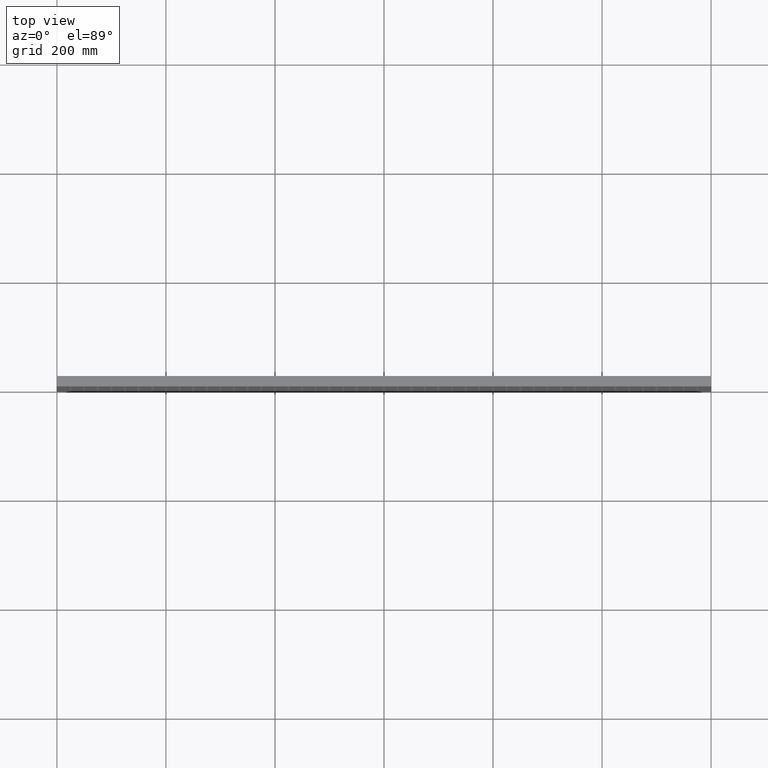
[diagram: clean part render]
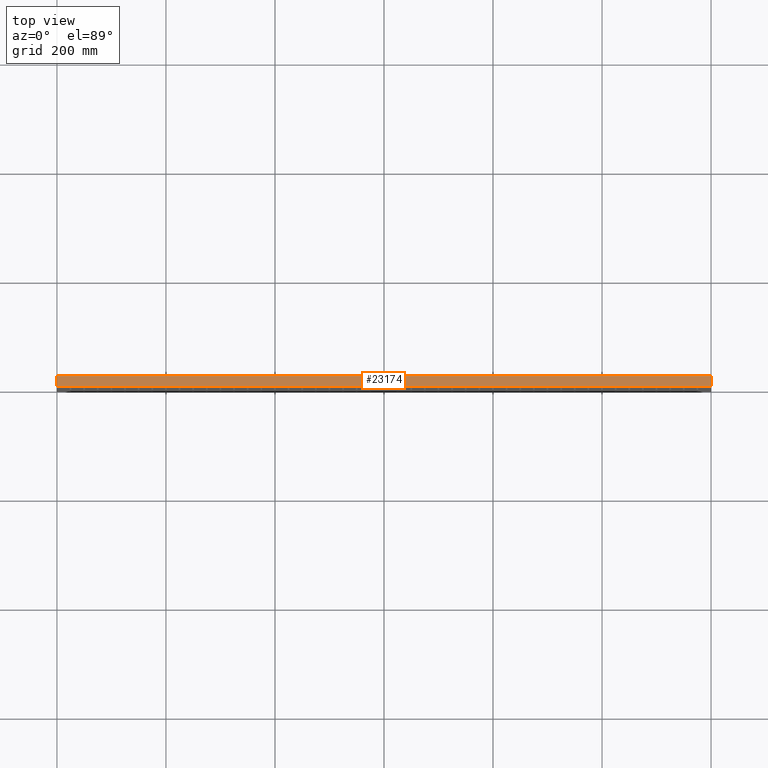
[diagram: same view with one face highlighted and labeled with its STEP entity id]
A machine part, top view. The second image highlights one B-rep face of the part: STEP entity #23174.
In plain terms, the highlighted planar face has unit normal (0, 0, -1).
Its self-contained STEP definition (entity closure, byte-faithful):
#1702 = EDGE_LOOP ( 'NONE', ( #26204, #36051, #7016, #2365 ) ) ;
#2365 = ORIENTED_EDGE ( 'NONE', *, *, #29900, .T. ) ;
#2554 = CARTESIAN_POINT ( 'NONE',  ( 600.0000000000000000, 19.00000000000000000, 300.0000000000001705 ) ) ;
#4177 = LINE ( 'NONE', #7031, #12575 ) ;
#4248 = EDGE_CURVE ( 'NONE', #26893, #29099, #5547, .T. ) ;
#4952 = AXIS2_PLACEMENT_3D ( 'NONE', #17007, #31287, #5078 ) ;
#5078 = DIRECTION ( 'NONE',  ( -1.000000000000000000, 0.000000000000000000, -0.000000000000000000 ) ) ;
#5520 = DIRECTION ( 'NONE',  ( 0.000000000000000000, 1.000000000000000000, 0.000000000000000000 ) ) ;
#5547 = LINE ( 'NONE', #28920, #20569 ) ;
#6713 = VERTEX_POINT ( 'NONE', #2554 ) ;
#7016 = ORIENTED_EDGE ( 'NONE', *, *, #4248, .F. ) ;
#7031 = CARTESIAN_POINT ( 'NONE',  ( 0.000000000000000000, 19.00000000000000000, 300.0000000000001705 ) ) ;
#7777 = CARTESIAN_POINT ( 'NONE',  ( -599.9999999999998863, 0.000000000000000000, 300.0000000000001705 ) ) ;
#7921 = LINE ( 'NONE', #19876, #27630 ) ;
#11223 = LINE ( 'NONE', #14452, #17717 ) ;
#11346 = DIRECTION ( 'NONE',  ( 1.000000000000000000, -0.000000000000000000, 0.000000000000000000 ) ) ;
#12575 = VECTOR ( 'NONE', #23745, 1000.000000000000000 ) ;
#14452 = CARTESIAN_POINT ( 'NONE',  ( 600.0000000000000000, 19.00000000000000000, 300.0000000000001705 ) ) ;
#15026 = CARTESIAN_POINT ( 'NONE',  ( -599.9999999999998863, 19.00000000000000000, 300.0000000000001705 ) ) ;
#17007 = CARTESIAN_POINT ( 'NONE',  ( -599.9999999999998863, 19.00000000000000000, 300.0000000000001705 ) ) ;
#17123 = DIRECTION ( 'NONE',  ( 0.000000000000000000, 1.000000000000000000, 0.000000000000000000 ) ) ;
#17697 = VERTEX_POINT ( 'NONE', #22260 ) ;
#17717 = VECTOR ( 'NONE', #5520, 1000.000000000000000 ) ;
#19494 = PLANE ( 'NONE',  #4952 ) ;
#19876 = CARTESIAN_POINT ( 'NONE',  ( -599.9999999999998863, 0.000000000000000000, 300.0000000000001705 ) ) ;
#20569 = VECTOR ( 'NONE', #17123, 1000.000000000000000 ) ;
#22260 = CARTESIAN_POINT ( 'NONE',  ( 599.9999999999998863, 0.000000000000000000, 300.0000000000001705 ) ) ;
#22733 = FACE_OUTER_BOUND ( 'NONE', #1702, .T. ) ;
#23174 = ADVANCED_FACE ( 'NONE', ( #22733 ), #19494, .F. ) ;
#23412 = EDGE_CURVE ( 'NONE', #17697, #6713, #11223, .T. ) ;
#23745 = DIRECTION ( 'NONE',  ( 1.000000000000000000, 0.000000000000000000, -0.000000000000000000 ) ) ;
#26204 = ORIENTED_EDGE ( 'NONE', *, *, #23412, .T. ) ;
#26893 = VERTEX_POINT ( 'NONE', #7777 ) ;
#27630 = VECTOR ( 'NONE', #11346, 1000.000000000000000 ) ;
#28920 = CARTESIAN_POINT ( 'NONE',  ( -599.9999999999998863, 19.00000000000000000, 300.0000000000001705 ) ) ;
#29099 = VERTEX_POINT ( 'NONE', #15026 ) ;
#29900 = EDGE_CURVE ( 'NONE', #26893, #17697, #7921, .T. ) ;
#31287 = DIRECTION ( 'NONE',  ( 0.000000000000000000, 0.000000000000000000, -1.000000000000000000 ) ) ;
#36051 = ORIENTED_EDGE ( 'NONE', *, *, #36820, .F. ) ;
#36820 = EDGE_CURVE ( 'NONE', #29099, #6713, #4177, .T. ) ;